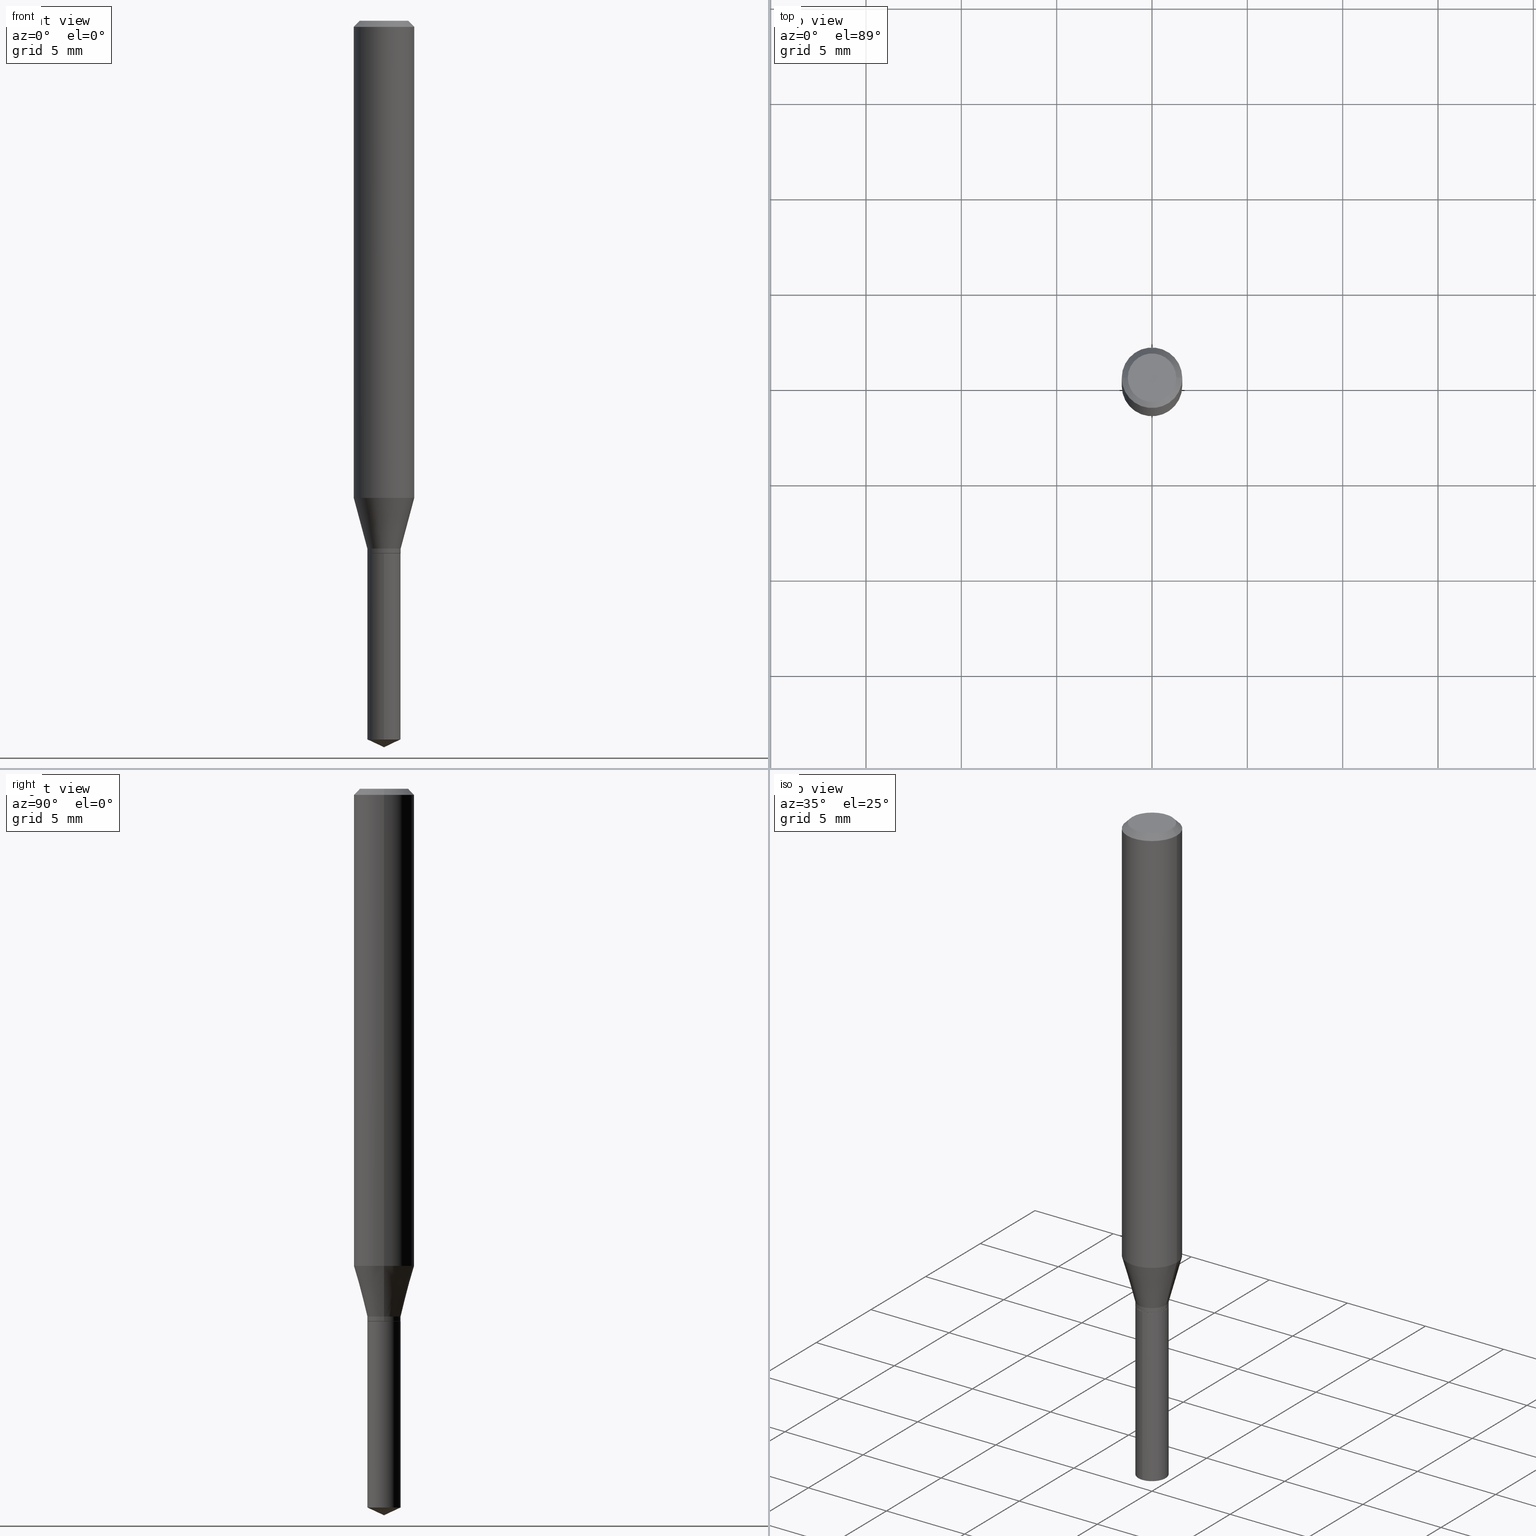
[diagram: canonical four-view strip — front | top / right | iso, engineering-drawing reading convention]
A machine part, canonical four-view strip (front | top / right | iso — engineering-drawing reading convention). The complete STEP part file that produces these views, byte-faithful:
ISO-10303-21;
HEADER;
FILE_DESCRIPTION (( 'STEP AP203' ),
    '1' );
FILE_NAME ('07347.STEP',
    '2024-04-23T20:37:40',
    ( '' ),
    ( '' ),
    'SwSTEP 2.0',
    'SolidWorks 2023',
    '' );
FILE_SCHEMA (( 'CONFIG_CONTROL_DESIGN' ));
ENDSEC;

DATA;
#1 = CARTESIAN_POINT ( 'NONE',  ( 2.690015686803650369E-29, -3.840629472727460101E-15, -1.100000000000000089 ) ) ;
#2 = DIRECTION ( 'NONE',  ( -2.445468806185136597E-29, 3.491481338843145583E-15, 1.000000000000000000 ) ) ;
#3 = ADVANCED_FACE ( 'NONE', ( #449 ), #380, .T. ) ;
#4 = CONICAL_SURFACE ( 'NONE', #285, 84.42940631927510253, 1.134464013796319337 ) ;
#5 = DATE_TIME_ROLE ( 'classification_date' ) ;
#6 = CONICAL_SURFACE ( 'NONE', #43, 0.03394999999999999407, 0.7853981633974184140 ) ;
#7 = CC_DESIGN_PERSON_AND_ORGANIZATION_ASSIGNMENT ( #214, #346, ( #337 ) ) ;
#8 = CARTESIAN_POINT ( 'NONE',  ( 2.447819724693908613E-16, 0.03444999999999483198, -1.483935701176560595 ) ) ;
#9 = PERSON_AND_ORGANIZATION ( #385, #442 ) ;
#10 = COORDINATED_UNIVERSAL_TIME_OFFSET ( 5, 0, .BEHIND. ) ;
#11 = VECTOR ( 'NONE', #46, 39.37007874015748143 ) ;
#12 = APPROVAL_PERSON_ORGANIZATION ( #464, #260, #22 ) ;
#13 = DESIGN_CONTEXT ( 'detailed design', #397, 'design' ) ;
#14 = CARTESIAN_POINT ( 'NONE',  ( 2.690015686803650369E-29, -3.840629472727460101E-15, -1.100000000000000089 ) ) ;
#15 = EDGE_CURVE ( 'NONE', #217, #28, #36, .T. ) ;
#16 = EDGE_LOOP ( 'NONE', ( #390, #399 ) ) ;
#17 = ORIENTED_EDGE ( 'NONE', *, *, #297, .F. ) ;
#18 = CARTESIAN_POINT ( 'NONE',  ( 3.056836007731440977E-31, -4.364351673553961068E-17, -0.01250000000000008223 ) ) ;
#19 = CIRCLE ( 'NONE', #209, 0.03445000000000000145 ) ;
#20 = EDGE_LOOP ( 'NONE', ( #430, #183, #267, #487 ) ) ;
#21 = CARTESIAN_POINT ( 'NONE',  ( 0.03445000000000000145, -4.045230279183668208E-15, -1.089700000000000113 ) ) ;
#22 = APPROVAL_ROLE ( '' ) ;
#23 = CARTESIAN_POINT ( 'NONE',  ( 2.690015686803650369E-29, -3.840629472727460101E-15, -1.100000000000000089 ) ) ;
#24 = ORIENTED_EDGE ( 'NONE', *, *, #249, .F. ) ;
#25 = EDGE_CURVE ( 'NONE', #289, #326, #198, .T. ) ;
#26 = FACE_OUTER_BOUND ( 'NONE', #167, .T. ) ;
#27 = COORDINATED_UNIVERSAL_TIME_OFFSET ( 5, 0, .BEHIND. ) ;
#28 = VERTEX_POINT ( 'NONE', #96 ) ;
#29 = LINE ( 'NONE', #443, #237 ) ;
#30 = CYLINDRICAL_SURFACE ( 'NONE', #328, 0.03445000000000000145 ) ;
#31 = VECTOR ( 'NONE', #48, 39.37007874015748143 ) ;
#32 = CC_DESIGN_PERSON_AND_ORGANIZATION_ASSIGNMENT ( #9, #341, ( #459 ) ) ;
#33 = DIRECTION ( 'NONE',  ( -2.445468806185136597E-29, 3.491481338843145583E-15, 1.000000000000000000 ) ) ;
#34 = CARTESIAN_POINT ( 'NONE',  ( 2.664827358099943591E-29, -3.804667214937376339E-15, -1.089700000000000113 ) ) ;
#35 = CARTESIAN_POINT ( 'NONE',  ( 0.000000000000000000, 0.000000000000000000, 0.000000000000000000 ) ) ;
#36 = LINE ( 'NONE', #309, #280 ) ;
#37 = EDGE_LOOP ( 'NONE', ( #24, #338, #440, #195 ) ) ;
#38 = DIRECTION ( 'NONE',  ( 2.445468806185136597E-29, -3.491481338843145583E-15, -1.000000000000000000 ) ) ;
#39 = PERSON_AND_ORGANIZATION ( #385, #442 ) ;
#40 = DIRECTION ( 'NONE',  ( 1.000000000000000000, -6.982962677686265922E-15, 4.875957971899673662E-29 ) ) ;
#41 = ORIENTED_EDGE ( 'NONE', *, *, #371, .T. ) ;
#42 = VECTOR ( 'NONE', #153, 39.37007874015748143 ) ;
#43 = AXIS2_PLACEMENT_3D ( 'NONE', #70, #225, #359 ) ;
#44 = DIRECTION ( 'NONE',  ( -2.445399690415121530E-29, 3.491580316559632610E-15, 1.000000000000000000 ) ) ;
#45 = PRODUCT_DEFINITION_SHAPE ( 'NONE', 'NONE',  #194 ) ;
#46 = DIRECTION ( 'NONE',  ( -2.445468806185136877E-29, 3.491481338843145188E-15, 1.000000000000000000 ) ) ;
#47 = CALENDAR_DATE ( 2024, 23, 4 ) ;
#48 = DIRECTION ( 'NONE',  ( -2.445399690415121810E-29, 3.491580316559632610E-15, 1.000000000000000000 ) ) ;
#49 = LINE ( 'NONE', #199, #126 ) ;
#50 = VECTOR ( 'NONE', #119, 39.37007874015748143 ) ;
#51 = DIRECTION ( 'NONE',  ( 2.445468806185136597E-29, -3.491481338843145583E-15, -1.000000000000000000 ) ) ;
#52 = EDGE_CURVE ( 'NONE', #363, #372, #356, .T. ) ;
#53 =( NAMED_UNIT ( * ) SI_UNIT ( $, .STERADIAN. ) SOLID_ANGLE_UNIT ( ) );
#54 = DIRECTION ( 'NONE',  ( 2.438088387897960049E-29, -3.491481338843145188E-15, -1.000000000000000000 ) ) ;
#55 = CARTESIAN_POINT ( 'NONE',  ( -2.405630642462556803E-16, -0.03445000000000519175, -1.483935701176560595 ) ) ;
#56 = LINE ( 'NONE', #89, #50 ) ;
#57 = CC_DESIGN_APPROVAL ( #260, ( #194 ) ) ;
#58 = ORIENTED_EDGE ( 'NONE', *, *, #322, .T. ) ;
#59 = PLANE ( 'NONE',  #458 ) ;
#60 = DIRECTION ( 'NONE',  ( 1.000000000000000000, -6.982962677686265922E-15, 0.000000000000000000 ) ) ;
#61 = EDGE_CURVE ( 'NONE', #211, #326, #401, .T. ) ;
#62 = DIRECTION ( 'NONE',  ( -1.000000000000000000, 6.982962677686265922E-15, -4.876176775795935793E-29 ) ) ;
#63 = ADVANCED_FACE ( 'NONE', ( #145 ), #295, .T. ) ;
#64 = ORIENTED_EDGE ( 'NONE', *, *, #113, .T. ) ;
#65 = ORIENTED_EDGE ( 'NONE', *, *, #445, .F. ) ;
#66 = CARTESIAN_POINT ( 'NONE',  ( 0.03445000000000000145, -4.045230279183668208E-15, -1.089700000000000113 ) ) ;
#67 = DIRECTION ( 'NONE',  ( -6.982962677686265922E-15, -1.000000000000000000, 3.964946289788480896E-15 ) ) ;
#68 = ORIENTED_EDGE ( 'NONE', *, *, #25, .T. ) ;
#69 = EDGE_CURVE ( 'NONE', #75, #372, #100, .T. ) ;
#70 = CARTESIAN_POINT ( 'NONE',  ( 2.690015686803650369E-29, -3.840629472727460101E-15, -1.100000000000000089 ) ) ;
#71 = AXIS2_PLACEMENT_3D ( 'NONE', #283, #468, #383 ) ;
#72 = CIRCLE ( 'NONE', #375, 0.04999999999999999584 ) ;
#73 = ORIENTED_EDGE ( 'NONE', *, *, #101, .F. ) ;
#74 = DIRECTION ( 'NONE',  ( -2.445399690415121530E-29, 3.491580316559632610E-15, 1.000000000000000000 ) ) ;
#75 = VERTEX_POINT ( 'NONE', #66 ) ;
#76 = MANIFOLD_SOLID_BREP ( 'Body-Move/Copy2[2]', #87 ) ;
#77 = ORIENTED_EDGE ( 'NONE', *, *, #61, .F. ) ;
#78 = DIRECTION ( 'NONE',  ( -2.445468806185136597E-29, 3.491481338843145583E-15, 1.000000000000000000 ) ) ;
#79 = PLANE ( 'NONE',  #95 ) ;
#80 = ORIENTED_EDGE ( 'NONE', *, *, #113, .F. ) ;
#81 = EDGE_CURVE ( 'NONE', #372, #363, #314, .T. ) ;
#82 = PRODUCT_DEFINITION_FORMATION_WITH_SPECIFIED_SOURCE ( 'ANY', '', #337, .NOT_KNOWN. ) ;
#83 = FACE_OUTER_BOUND ( 'NONE', #20, .T. ) ;
#84 = EDGE_CURVE ( 'NONE', #274, #479, #451, .T. ) ;
#85 = DIRECTION ( 'NONE',  ( 1.000000000000000000, -6.982962677686265922E-15, 4.876176775795935793E-29 ) ) ;
#86 = DIRECTION ( 'NONE',  ( -2.445468806185136597E-29, 3.491481338843145583E-15, 1.000000000000000000 ) ) ;
#87 = CLOSED_SHELL ( 'NONE', ( #377, #460, #407, #488, #426, #350, #3, #179, #121, #221, #453, #354 ) ) ;
#88 = DIRECTION ( 'NONE',  ( 1.000000000000000000, -6.982962677686265922E-15, 0.000000000000000000 ) ) ;
#89 = CARTESIAN_POINT ( 'NONE',  ( 0.06250000000000005551, -4.364351673553921131E-16, 3.047610484872463023E-30 ) ) ;
#90 = DIRECTION ( 'NONE',  ( 2.445399690415121250E-29, -3.491580316559632610E-15, -1.000000000000000000 ) ) ;
#91 = ORIENTED_EDGE ( 'NONE', *, *, #155, .T. ) ;
#92 = ADVANCED_FACE ( 'NONE', ( #83 ), #412, .T. ) ;
#93 = CARTESIAN_POINT ( 'NONE',  ( 0.04999999999999999584, -4.077247707424184212E-16, -1.592040838888913461E-18 ) ) ;
#94 = VECTOR ( 'NONE', #197, 39.37007874015748854 ) ;
#95 = AXIS2_PLACEMENT_3D ( 'NONE', #1, #369, #85 ) ;
#96 = CARTESIAN_POINT ( 'NONE',  ( -0.06250000000000000000, -1.297314995839260696E-15, -0.01250000000000008223 ) ) ;
#97 = DIRECTION ( 'NONE',  ( -2.445468806185136877E-29, 3.491481338843145188E-15, 1.000000000000000000 ) ) ;
#98 = ORIENTED_EDGE ( 'NONE', *, *, #469, .T. ) ;
#99 = DIRECTION ( 'NONE',  ( -6.982962677686265922E-15, -1.000000000000000000, 3.964946289788480896E-15 ) ) ;
#100 = LINE ( 'NONE', #21, #181 ) ;
#101 = EDGE_CURVE ( 'NONE', #274, #75, #308, .T. ) ;
#102 = CARTESIAN_POINT ( 'NONE',  ( -9.260740279983036507E-28, 1.322265303911854087E-13, 37.87007874015748143 ) ) ;
#103 = DIRECTION ( 'NONE',  ( 1.000000000000000000, -6.982962677686267499E-15, 4.876176775795935793E-29 ) ) ;
#104 = ORIENTED_EDGE ( 'NONE', *, *, #330, .F. ) ;
#105 = DIRECTION ( 'NONE',  ( 0.2588190451025212391, 1.565188264969622362E-15, 0.9659258262890679791 ) ) ;
#106 = APPROVAL_STATUS ( 'not_yet_approved' ) ;
#107 = CIRCLE ( 'NONE', #71, 0.03445000000000000145 ) ;
#108 = ADVANCED_BREP_SHAPE_REPRESENTATION ( '07347', ( #240, #76, #232 ), #431 ) ;
#109 = AXIS2_PLACEMENT_3D ( 'NONE', #118, #268, #40 ) ;
#110 = ORIENTED_EDGE ( 'NONE', *, *, #273, .T. ) ;
#111 = SECURITY_CLASSIFICATION_LEVEL ( 'unclassified' ) ;
#112 = EDGE_LOOP ( 'NONE', ( #185, #91, #411, #428 ) ) ;
#113 = EDGE_CURVE ( 'NONE', #75, #415, #19, .T. ) ;
#114 = CARTESIAN_POINT ( 'NONE',  ( -0.03445000000000000145, -3.576993501028352698E-15, -1.089700000000000113 ) ) ;
#115 = CARTESIAN_POINT ( 'NONE',  ( 2.664827358099943591E-29, -3.804667214937376339E-15, -1.089700000000000113 ) ) ;
#116 = AXIS2_PLACEMENT_3D ( 'NONE', #408, #366, #222 ) ;
#117 = ORIENTED_EDGE ( 'NONE', *, *, #416, .F. ) ;
#118 = CARTESIAN_POINT ( 'NONE',  ( 3.893286209682126177E-47, -5.558580879666067980E-33, -1.592040838891559689E-18 ) ) ;
#119 = DIRECTION ( 'NONE',  ( -2.445468806185136877E-29, 3.491481338843145188E-15, 1.000000000000000000 ) ) ;
#120 = DIRECTION ( 'NONE',  ( -2.445468806185136597E-29, 3.491481338843145583E-15, 1.000000000000000000 ) ) ;
#121 = ADVANCED_FACE ( 'NONE', ( #306 ), #161, .T. ) ;
#122 = LINE ( 'NONE', #339, #94 ) ;
#123 = DATE_AND_TIME ( #409, #143 ) ;
#124 = ORIENTED_EDGE ( 'NONE', *, *, #386, .T. ) ;
#125 = AXIS2_PLACEMENT_3D ( 'NONE', #284, #329, #182 ) ;
#126 = VECTOR ( 'NONE', #234, 39.37007874015748143 ) ;
#127 = CARTESIAN_POINT ( 'NONE',  ( -0.06250000000000005551, 4.440892098500630106E-16, -3.074334431409318916E-30 ) ) ;
#128 = EDGE_CURVE ( 'NONE', #479, #274, #490, .T. ) ;
#129 = DIRECTION ( 'NONE',  ( 1.000000000000000000, -6.982962677686265922E-15, 0.000000000000000000 ) ) ;
#130 = FACE_OUTER_BOUND ( 'NONE', #16, .T. ) ;
#131 = CALENDAR_DATE ( 2024, 23, 4 ) ;
#132 = DIRECTION ( 'NONE',  ( -6.982962677686268288E-15, -1.000000000000000000, 3.520397390770421921E-15 ) ) ;
#133 = APPROVAL_STATUS ( 'not_yet_approved' ) ;
#134 = CARTESIAN_POINT ( 'NONE',  ( 1.946643104841063088E-47, -2.779290439833033990E-33, -7.960204194457798443E-19 ) ) ;
#135 = VECTOR ( 'NONE', #97, 39.37007874015748143 ) ;
#136 = CONICAL_SURFACE ( 'NONE', #482, 0.03445000000000000145, 0.2617993877991499629 ) ;
#137 = ADVANCED_FACE ( 'NONE', ( #207 ), #4, .T. ) ;
#138 = DIRECTION ( 'NONE',  ( -6.982962677686265922E-15, -1.000000000000000000, 3.964946289788480896E-15 ) ) ;
#139 = CARTESIAN_POINT ( 'NONE',  ( -2.405630642462649987E-16, -0.03445000000000384560, -1.099999999999999867 ) ) ;
#140 = ORIENTED_EDGE ( 'NONE', *, *, #478, .T. ) ;
#141 = CIRCLE ( 'NONE', #189, 0.03445000000000000145 ) ;
#142 =( NAMED_UNIT ( * ) PLANE_ANGLE_UNIT ( ) SI_UNIT ( $, .RADIAN. ) );
#143 = LOCAL_TIME ( 16, 37, 40.00000000000000000, #233 ) ;
#144 = EDGE_CURVE ( 'NONE', #402, #166, #467, .T. ) ;
#145 = FACE_OUTER_BOUND ( 'NONE', #294, .T. ) ;
#146 = ORIENTED_EDGE ( 'NONE', *, *, #386, .F. ) ;
#147 = SHAPE_DEFINITION_REPRESENTATION ( #45, #108 ) ;
#148 = DATE_TIME_ROLE ( 'creation_date' ) ;
#149 = AXIS2_PLACEMENT_3D ( 'NONE', #245, #239, #421 ) ;
#150 = AXIS2_PLACEMENT_3D ( 'NONE', #259, #33, #299 ) ;
#151 = ORIENTED_EDGE ( 'NONE', *, *, #163, .T. ) ;
#152 = ORIENTED_EDGE ( 'NONE', *, *, #330, .T. ) ;
#153 = DIRECTION ( 'NONE',  ( -2.445399690415121810E-29, 3.491580316559632610E-15, 1.000000000000000000 ) ) ;
#154 = CARTESIAN_POINT ( 'NONE',  ( -2.405630642462649987E-16, -0.03445000000000384560, -1.099999999999999867 ) ) ;
#155 = EDGE_CURVE ( 'NONE', #187, #320, #382, .T. ) ;
#156 = VERTEX_POINT ( 'NONE', #55 ) ;
#157 = ORIENTED_EDGE ( 'NONE', *, *, #316, .F. ) ;
#158 = DIRECTION ( 'NONE',  ( 0.7071067811865263675, -2.468850131082035391E-15, 0.7071067811865686670 ) ) ;
#159 = DIRECTION ( 'NONE',  ( -6.982962677686265922E-15, -1.000000000000000000, 0.000000000000000000 ) ) ;
#160 = DIRECTION ( 'NONE',  ( 1.000000000000000000, -6.982962677686265922E-15, 0.000000000000000000 ) ) ;
#161 = CONICAL_SURFACE ( 'NONE', #215, 0.06250000000000000000, 0.7853981633974452814 ) ;
#162 = DIRECTION ( 'NONE',  ( 1.000000000000000000, -6.982962677686267499E-15, 4.876176775795935793E-29 ) ) ;
#163 = EDGE_CURVE ( 'NONE', #326, #289, #481, .T. ) ;
#164 = DIRECTION ( 'NONE',  ( 1.000000000000000000, -6.982962677686265922E-15, 0.000000000000000000 ) ) ;
#165 = DIRECTION ( 'NONE',  ( 1.000000000000000000, -6.982962677686266711E-15, 0.000000000000000000 ) ) ;
#166 = VERTEX_POINT ( 'NONE', #323 ) ;
#167 = EDGE_LOOP ( 'NONE', ( #65, #298, #152, #227 ) ) ;
#168 = DIRECTION ( 'NONE',  ( 1.000000000000000000, -6.982962677686264344E-15, 0.000000000000000000 ) ) ;
#169 = EDGE_CURVE ( 'NONE', #370, #156, #29, .T. ) ;
#170 = AXIS2_PLACEMENT_3D ( 'NONE', #102, #174, #315 ) ;
#171 = LOCAL_TIME ( 16, 37, 40.00000000000000000, #244 ) ;
#172 = APPROVAL_STATUS ( 'not_yet_approved' ) ;
#173 = CARTESIAN_POINT ( 'NONE',  ( 2.664827358099943591E-29, -3.804667214937376339E-15, -1.089700000000000113 ) ) ;
#174 = DIRECTION ( 'NONE',  ( -2.445399690415121530E-29, 3.491580316559632610E-15, 1.000000000000000000 ) ) ;
#175 = DIRECTION ( 'NONE',  ( -2.445399690415121530E-29, 3.491580316559632610E-15, 1.000000000000000000 ) ) ;
#176 = EDGE_LOOP ( 'NONE', ( #334, #140 ) ) ;
#177 = DIRECTION ( 'NONE',  ( 1.000000000000000000, -6.982962677686266711E-15, 0.000000000000000000 ) ) ;
#178 =( LENGTH_UNIT ( ) NAMED_UNIT ( * ) SI_UNIT ( $, .METRE. ) );
#179 = ADVANCED_FACE ( 'NONE', ( #26 ), #420, .T. ) ;
#180 = ORIENTED_EDGE ( 'NONE', *, *, #466, .F. ) ;
#181 = VECTOR ( 'NONE', #105, 39.37007874015748854 ) ;
#182 = DIRECTION ( 'NONE',  ( 1.000000000000000000, -6.982962677686264344E-15, 0.000000000000000000 ) ) ;
#183 = ORIENTED_EDGE ( 'NONE', *, *, #61, .T. ) ;
#184 = CALENDAR_DATE ( 2024, 23, 4 ) ;
#185 = ORIENTED_EDGE ( 'NONE', *, *, #478, .F. ) ;
#186 = CARTESIAN_POINT ( 'NONE',  ( 2.664827358099943591E-29, -3.804667214937376339E-15, -1.089700000000000113 ) ) ;
#187 = VERTEX_POINT ( 'NONE', #93 ) ;
#188 = EDGE_CURVE ( 'NONE', #415, #75, #141, .T. ) ;
#189 = AXIS2_PLACEMENT_3D ( 'NONE', #173, #86, #129 ) ;
#190 = APPROVAL_PERSON_ORGANIZATION ( #439, #241, #218 ) ;
#191 = CARTESIAN_POINT ( 'NONE',  ( -0.06250000000000012490, -2.995075684793045236E-15, -0.9850159748476928767 ) ) ;
#192 = CARTESIAN_POINT ( 'NONE',  ( 0.06250000000000012490, -3.875600061998501888E-15, -0.9850159748476928767 ) ) ;
#193 = CARTESIAN_POINT ( 'NONE',  ( 2.690015686803650369E-29, -3.840629472727460101E-15, -1.100000000000000089 ) ) ;
#194 = PRODUCT_DEFINITION ( 'UNKNOWN', '', #82, #13 ) ;
#195 = ORIENTED_EDGE ( 'NONE', *, *, #52, .F. ) ;
#196 = CARTESIAN_POINT ( 'NONE',  ( 2.690015686803650369E-29, -3.840629472727460101E-15, -1.100000000000000089 ) ) ;
#197 = DIRECTION ( 'NONE',  ( -0.2588190451025212391, 5.211531920934549464E-15, 0.9659258262890679791 ) ) ;
#198 = CIRCLE ( 'NONE', #327, 0.03445000000000000145 ) ;
#199 = CARTESIAN_POINT ( 'NONE',  ( 3.668252923656895710E-29, -5.237152723863177100E-15, -1.500000000000000222 ) ) ;
#200 = AXIS2_PLACEMENT_3D ( 'NONE', #236, #51, #208 ) ;
#201 = APPROVAL_ROLE ( '' ) ;
#202 = DIRECTION ( 'NONE',  ( -2.445468806185136597E-29, 3.491481338843145583E-15, 1.000000000000000000 ) ) ;
#203 = DATE_AND_TIME ( #47, #171 ) ;
#204 = FACE_OUTER_BOUND ( 'NONE', #489, .T. ) ;
#205 = AXIS2_PLACEMENT_3D ( 'NONE', #438, #444, #67 ) ;
#206 = CC_DESIGN_SECURITY_CLASSIFICATION ( #459, ( #82 ) ) ;
#207 = FACE_OUTER_BOUND ( 'NONE', #457, .T. ) ;
#208 = DIRECTION ( 'NONE',  ( -1.000000000000000000, 6.982962677686266711E-15, 0.000000000000000000 ) ) ;
#209 = AXIS2_PLACEMENT_3D ( 'NONE', #34, #367, #160 ) ;
#210 = AXIS2_PLACEMENT_3D ( 'NONE', #196, #304, #165 ) ;
#211 = VERTEX_POINT ( 'NONE', #8 ) ;
#212 = CC_DESIGN_PERSON_AND_ORGANIZATION_ASSIGNMENT ( #357, #461, ( #194 ) ) ;
#213 = ORIENTED_EDGE ( 'NONE', *, *, #403, .T. ) ;
#214 = PERSON_AND_ORGANIZATION ( #385, #442 ) ;
#215 = AXIS2_PLACEMENT_3D ( 'NONE', #333, #38, #301 ) ;
#216 = DATE_AND_TIME ( #353, #365 ) ;
#217 = VERTEX_POINT ( 'NONE', #276 ) ;
#218 = APPROVAL_ROLE ( '' ) ;
#219 = APPROVAL_DATE_TIME ( #123, #342 ) ;
#220 = ORIENTED_EDGE ( 'NONE', *, *, #445, .T. ) ;
#221 = ADVANCED_FACE ( 'NONE', ( #247 ), #59, .F. ) ;
#222 = DIRECTION ( 'NONE',  ( 1.000000000000000000, -6.982962677686266711E-15, 0.000000000000000000 ) ) ;
#223 = CONICAL_SURFACE ( 'NONE', #200, 0.06250000000000000000, 0.7853981633974452814 ) ;
#224 = EDGE_LOOP ( 'NONE', ( #228, #447, #146 ) ) ;
#225 = DIRECTION ( 'NONE',  ( -2.445468806185136597E-29, 3.491481338843145583E-15, 1.000000000000000000 ) ) ;
#226 = PRODUCT_RELATED_PRODUCT_CATEGORY ( 'detail', '', ( #337 ) ) ;
#227 = ORIENTED_EDGE ( 'NONE', *, *, #371, .F. ) ;
#228 = ORIENTED_EDGE ( 'NONE', *, *, #403, .F. ) ;
#229 = EDGE_LOOP ( 'NONE', ( #64, #246, #470, #331 ) ) ;
#230 = LINE ( 'NONE', #127, #473 ) ;
#231 = ORIENTED_EDGE ( 'NONE', *, *, #101, .T. ) ;
#232 = AXIS2_PLACEMENT_3D ( 'NONE', #242, #471, #395 ) ;
#233 = COORDINATED_UNIVERSAL_TIME_OFFSET ( 5, 0, .BEHIND. ) ;
#234 = DIRECTION ( 'NONE',  ( 6.439704144417040608E-15, 0.9063077870366536004, 0.4226182617406916142 ) ) ;
#235 = EDGE_CURVE ( 'NONE', #156, #289, #394, .T. ) ;
#236 = CARTESIAN_POINT ( 'NONE',  ( 3.056836007731440977E-31, -4.364351673553961068E-17, -0.01250000000000008223 ) ) ;
#237 = VECTOR ( 'NONE', #437, 39.37007874015748143 ) ;
#238 = CC_DESIGN_APPROVAL ( #241, ( #82 ) ) ;
#239 = DIRECTION ( 'NONE',  ( -2.445468806185136597E-29, 3.491481338843145583E-15, 1.000000000000000000 ) ) ;
#240 = MANIFOLD_SOLID_BREP ( 'Body-Move/Copy2[1]', #429 ) ;
#241 = APPROVAL ( #106, 'UNSPECIFIED' ) ;
#242 = CARTESIAN_POINT ( 'NONE',  ( 0.000000000000000000, 0.000000000000000000, 0.000000000000000000 ) ) ;
#243 = CARTESIAN_POINT ( 'NONE',  ( 0.000000000000000000, 0.000000000000000000, 0.000000000000000000 ) ) ;
#244 = COORDINATED_UNIVERSAL_TIME_OFFSET ( 5, 0, .BEHIND. ) ;
#245 = CARTESIAN_POINT ( 'NONE',  ( 2.690015686803650369E-29, -3.840629472727460101E-15, -1.100000000000000089 ) ) ;
#246 = ORIENTED_EDGE ( 'NONE', *, *, #249, .T. ) ;
#247 = FACE_OUTER_BOUND ( 'NONE', #176, .T. ) ;
#248 = AXIS2_PLACEMENT_3D ( 'NONE', #455, #120, #60 ) ;
#249 = EDGE_CURVE ( 'NONE', #415, #363, #122, .T. ) ;
#250 = EDGE_LOOP ( 'NONE', ( #255, #351, #231, #358 ) ) ;
#251 = AXIS2_PLACEMENT_3D ( 'NONE', #35, #436, #103 ) ;
#252 = APPLICATION_PROTOCOL_DEFINITION ( 'international standard', 'config_control_design', 1994, #373 ) ;
#253 = CYLINDRICAL_SURFACE ( 'NONE', #251, 0.03445000000000000145 ) ;
#254 = ORIENTED_EDGE ( 'NONE', *, *, #155, .F. ) ;
#255 = ORIENTED_EDGE ( 'NONE', *, *, #322, .F. ) ;
#256 = CARTESIAN_POINT ( 'NONE',  ( 2.408825840084076168E-29, -3.439164894643109430E-15, -0.9850159748476928767 ) ) ;
#257 = LINE ( 'NONE', #486, #475 ) ;
#258 = EDGE_LOOP ( 'NONE', ( #254, #180, #474, #41 ) ) ;
#259 = CARTESIAN_POINT ( 'NONE',  ( 3.056836007731440977E-31, -4.364351673553961068E-17, -0.01250000000000008223 ) ) ;
#260 = APPROVAL ( #133, 'UNSPECIFIED' ) ;
#261 = AXIS2_PLACEMENT_3D ( 'NONE', #18, #318, #177 ) ;
#262 = DIRECTION ( 'NONE',  ( -2.445399690415121530E-29, 3.491580316559632610E-15, 1.000000000000000000 ) ) ;
#263 = LOCAL_TIME ( 16, 37, 40.00000000000000000, #27 ) ;
#264 = FACE_OUTER_BOUND ( 'NONE', #355, .T. ) ;
#265 = CONICAL_SURFACE ( 'NONE', #116, 0.03394999999999999407, 0.7853981633974184140 ) ;
#266 = DIRECTION ( 'NONE',  ( -2.445468806185136597E-29, 3.491481338843145583E-15, 1.000000000000000000 ) ) ;
#267 = ORIENTED_EDGE ( 'NONE', *, *, #25, .F. ) ;
#268 = DIRECTION ( 'NONE',  ( -2.445468806185136597E-29, 3.491481338843145583E-15, 1.000000000000000000 ) ) ;
#269 = UNCERTAINTY_MEASURE_WITH_UNIT (LENGTH_MEASURE( 1.000000000000000082E-05 ), #281, 'distance_accuracy_value', 'NONE');
#270 = LINE ( 'NONE', #410, #364 ) ;
#271 = DIRECTION ( 'NONE',  ( 1.000000000000000000, -6.982962677686265922E-15, 4.875957971899673662E-29 ) ) ;
#272 = DIRECTION ( 'NONE',  ( -2.445468806185136597E-29, 3.491481338843145583E-15, 1.000000000000000000 ) ) ;
#273 = EDGE_CURVE ( 'NONE', #166, #479, #270, .T. ) ;
#274 = VERTEX_POINT ( 'NONE', #378 ) ;
#275 = DIRECTION ( 'NONE',  ( -2.445468806185136877E-29, 3.491481338843145188E-15, 1.000000000000000000 ) ) ;
#276 = CARTESIAN_POINT ( 'NONE',  ( -0.04999999999999999584, 3.709698922520826725E-16, -1.592040838894077649E-18 ) ) ;
#277 = DIRECTION ( 'NONE',  ( -0.7071067811865453523, 2.468850131082234184E-15, -0.7071067811865496822 ) ) ;
#278 = DATE_AND_TIME ( #131, #263 ) ;
#279 = ADVANCED_FACE ( 'NONE', ( #204 ), #313, .F. ) ;
#280 = VECTOR ( 'NONE', #277, 39.37007874015748143 ) ;
#281 =( CONVERSION_BASED_UNIT ( 'INCH', #319 ) LENGTH_UNIT ( ) NAMED_UNIT ( #360 ) );
#282 = CARTESIAN_POINT ( 'NONE',  ( 0.06250000000000000000, -4.800786840909312308E-16, -0.01250000000000008223 ) ) ;
#283 = CARTESIAN_POINT ( 'NONE',  ( 3.628891931600123606E-29, -5.181171809780059473E-15, -1.483935701176560595 ) ) ;
#284 = CARTESIAN_POINT ( 'NONE',  ( 2.408825840084076168E-29, -3.439164894643109430E-15, -0.9850159748476928767 ) ) ;
#285 = AXIS2_PLACEMENT_3D ( 'NONE', #311, #463, #132 ) ;
#286 = AXIS2_PLACEMENT_3D ( 'NONE', #456, #272, #484 ) ;
#287 = PERSON_AND_ORGANIZATION ( #385, #442 ) ;
#288 = ORIENTED_EDGE ( 'NONE', *, *, #416, .T. ) ;
#289 = VERTEX_POINT ( 'NONE', #139 ) ;
#290 = ADVANCED_FACE ( 'NONE', ( #435 ), #321, .T. ) ;
#291 = COORDINATED_UNIVERSAL_TIME_OFFSET ( 5, 0, .BEHIND. ) ;
#292 = CIRCLE ( 'NONE', #210, 0.03394999999999999407 ) ;
#293 = PERSON_AND_ORGANIZATION_ROLE ( 'design_supplier' ) ;
#294 = EDGE_LOOP ( 'NONE', ( #77, #124, #352, #362 ) ) ;
#295 = CYLINDRICAL_SURFACE ( 'NONE', #205, 0.03445000000000000145 ) ;
#296 = EDGE_LOOP ( 'NONE', ( #434, #98, #288, #391 ) ) ;
#297 = EDGE_CURVE ( 'NONE', #156, #211, #107, .T. ) ;
#298 = ORIENTED_EDGE ( 'NONE', *, *, #52, .T. ) ;
#299 = DIRECTION ( 'NONE',  ( 1.000000000000000000, -6.982962677686266711E-15, 0.000000000000000000 ) ) ;
#300 = AXIS2_PLACEMENT_3D ( 'NONE', #243, #465, #307 ) ;
#301 = DIRECTION ( 'NONE',  ( -1.000000000000000000, 6.982962677686266711E-15, 0.000000000000000000 ) ) ;
#302 = FACE_OUTER_BOUND ( 'NONE', #450, .T. ) ;
#303 = CC_DESIGN_DATE_AND_TIME_ASSIGNMENT ( #324, #148, ( #194 ) ) ;
#304 = DIRECTION ( 'NONE',  ( -2.445468806185136597E-29, 3.491481338843145583E-15, 1.000000000000000000 ) ) ;
#305 = CYLINDRICAL_SURFACE ( 'NONE', #286, 0.06250000000000005551 ) ;
#306 = FACE_OUTER_BOUND ( 'NONE', #258, .T. ) ;
#307 = DIRECTION ( 'NONE',  ( 1.000000000000000000, -6.982962677686267499E-15, 4.876176775795936353E-29 ) ) ;
#308 = LINE ( 'NONE', #418, #11 ) ;
#309 = CARTESIAN_POINT ( 'NONE',  ( -0.06250000000000000000, 3.927916506198521080E-16, -0.01250000000000008223 ) ) ;
#310 = CC_DESIGN_PERSON_AND_ORGANIZATION_ASSIGNMENT ( #39, #293, ( #82 ) ) ;
#311 = CARTESIAN_POINT ( 'NONE',  ( -9.260740279983036507E-28, 1.322265303911854087E-13, 37.87007874015748143 ) ) ;
#312 = MECHANICAL_CONTEXT ( 'NONE', #373, 'mechanical' ) ;
#313 = PLANE ( 'NONE',  #335 ) ;
#314 = CIRCLE ( 'NONE', #389, 0.06250000000000012490 ) ;
#315 = DIRECTION ( 'NONE',  ( -6.982962677686268288E-15, -1.000000000000000000, 3.520397390770421921E-15 ) ) ;
#316 = EDGE_CURVE ( 'NONE', #320, #28, #404, .T. ) ;
#317 = ORIENTED_EDGE ( 'NONE', *, *, #84, .T. ) ;
#318 = DIRECTION ( 'NONE',  ( -2.445468806185136597E-29, 3.491481338843145583E-15, 1.000000000000000000 ) ) ;
#319 = LENGTH_MEASURE_WITH_UNIT ( LENGTH_MEASURE( 0.02539999999999999897 ), #178 );
#320 = VERTEX_POINT ( 'NONE', #282 ) ;
#321 = CONICAL_SURFACE ( 'NONE', #170, 84.42940631927510253, 1.134464013796319337 ) ;
#322 = EDGE_CURVE ( 'NONE', #479, #415, #345, .T. ) ;
#323 = CARTESIAN_POINT ( 'NONE',  ( -0.03394999999999999407, -3.596750986762795422E-15, -1.100000000000000089 ) ) ;
#324 = DATE_AND_TIME ( #184, #452 ) ;
#325 = DIRECTION ( 'NONE',  ( -2.445468806185136597E-29, 3.491481338843145583E-15, 1.000000000000000000 ) ) ;
#326 = VERTEX_POINT ( 'NONE', #427 ) ;
#327 = AXIS2_PLACEMENT_3D ( 'NONE', #23, #262, #138 ) ;
#328 = AXIS2_PLACEMENT_3D ( 'NONE', #446, #325, #162 ) ;
#329 = DIRECTION ( 'NONE',  ( -2.445468806185136597E-29, 3.491481338843145583E-15, 1.000000000000000000 ) ) ;
#330 = EDGE_CURVE ( 'NONE', #372, #320, #56, .T. ) ;
#331 = ORIENTED_EDGE ( 'NONE', *, *, #69, .F. ) ;
#332 = CARTESIAN_POINT ( 'NONE',  ( 3.628891931600123606E-29, -5.181171809780059473E-15, -1.483935701176560595 ) ) ;
#333 = CARTESIAN_POINT ( 'NONE',  ( 3.056836007731440977E-31, -4.364351673553961068E-17, -0.01250000000000008223 ) ) ;
#334 = ORIENTED_EDGE ( 'NONE', *, *, #466, .T. ) ;
#335 = AXIS2_PLACEMENT_3D ( 'NONE', #388, #90, #347 ) ;
#336 = AXIS2_PLACEMENT_3D ( 'NONE', #332, #74, #159 ) ;
#337 = PRODUCT ( '07347', '07347', '', ( #312 ) ) ;
#338 = ORIENTED_EDGE ( 'NONE', *, *, #188, .T. ) ;
#339 = CARTESIAN_POINT ( 'NONE',  ( -0.03445000000000000145, -3.559885242468021174E-15, -1.089700000000000113 ) ) ;
#340 = ORIENTED_EDGE ( 'NONE', *, *, #169, .F. ) ;
#341 = PERSON_AND_ORGANIZATION_ROLE ( 'classification_officer' ) ;
#342 = APPROVAL ( #172, 'UNSPECIFIED' ) ;
#343 = APPROVAL_PERSON_ORGANIZATION ( #384, #342, #201 ) ;
#344 = CARTESIAN_POINT ( 'NONE',  ( -0.03445000000000000145, -3.576993501028352698E-15, -1.099499999999999922 ) ) ;
#345 = LINE ( 'NONE', #425, #135 ) ;
#346 = PERSON_AND_ORGANIZATION_ROLE ( 'design_owner' ) ;
#347 = DIRECTION ( 'NONE',  ( 6.982962677686265922E-15, 1.000000000000000000, -3.491580316559632610E-15 ) ) ;
#348 = AXIS2_PLACEMENT_3D ( 'NONE', #193, #44, #368 ) ;
#349 = CIRCLE ( 'NONE', #109, 0.04999999999999999584 ) ;
#350 = ADVANCED_FACE ( 'NONE', ( #400 ), #30, .T. ) ;
#351 = ORIENTED_EDGE ( 'NONE', *, *, #128, .T. ) ;
#352 = ORIENTED_EDGE ( 'NONE', *, *, #235, .T. ) ;
#353 = CALENDAR_DATE ( 2024, 23, 4 ) ;
#354 = ADVANCED_FACE ( 'NONE', ( #480 ), #265, .T. ) ;
#355 = EDGE_LOOP ( 'NONE', ( #317, #58, #80, #73 ) ) ;
#356 = CIRCLE ( 'NONE', #125, 0.06250000000000012490 ) ;
#357 = PERSON_AND_ORGANIZATION ( #385, #442 ) ;
#358 = ORIENTED_EDGE ( 'NONE', *, *, #188, .F. ) ;
#359 = DIRECTION ( 'NONE',  ( 1.000000000000000000, -6.982962677686266711E-15, 0.000000000000000000 ) ) ;
#360 = DIMENSIONAL_EXPONENTS ( 1.000000000000000000, 0.000000000000000000, 0.000000000000000000, 0.000000000000000000, 0.000000000000000000, 0.000000000000000000, 0.000000000000000000 ) ;
#361 = FACE_OUTER_BOUND ( 'NONE', #229, .T. ) ;
#362 = ORIENTED_EDGE ( 'NONE', *, *, #163, .F. ) ;
#363 = VERTEX_POINT ( 'NONE', #191 ) ;
#364 = VECTOR ( 'NONE', #417, 39.37007874015748143 ) ;
#365 = LOCAL_TIME ( 16, 37, 40.00000000000000000, #10 ) ;
#366 = DIRECTION ( 'NONE',  ( -2.445468806185136597E-29, 3.491481338843145583E-15, 1.000000000000000000 ) ) ;
#367 = DIRECTION ( 'NONE',  ( -2.445468806185136597E-29, 3.491481338843145583E-15, 1.000000000000000000 ) ) ;
#368 = DIRECTION ( 'NONE',  ( -6.982962677686265922E-15, -1.000000000000000000, 3.964946289788480896E-15 ) ) ;
#369 = DIRECTION ( 'NONE',  ( -2.438088387897960049E-29, 3.491481338843145188E-15, 1.000000000000000000 ) ) ;
#370 = VERTEX_POINT ( 'NONE', #448 ) ;
#371 = EDGE_CURVE ( 'NONE', #28, #320, #396, .T. ) ;
#372 = VERTEX_POINT ( 'NONE', #192 ) ;
#373 = APPLICATION_CONTEXT ( 'configuration controlled 3d designs of mechanical parts and assemblies' ) ;
#374 = CARTESIAN_POINT ( 'NONE',  ( 2.688792952400557567E-29, -3.838883732058038598E-15, -1.099499999999999922 ) ) ;
#375 = AXIS2_PLACEMENT_3D ( 'NONE', #376, #202, #271 ) ;
#376 = CARTESIAN_POINT ( 'NONE',  ( 3.893286209682126177E-47, -5.558580879666067980E-33, -1.592040838891559689E-18 ) ) ;
#377 = ADVANCED_FACE ( 'NONE', ( #477 ), #6, .T. ) ;
#378 = CARTESIAN_POINT ( 'NONE',  ( 0.03445000000000000145, -4.079446796304330467E-15, -1.099499999999999922 ) ) ;
#379 = CARTESIAN_POINT ( 'NONE',  ( 0.03394999999999999407, -4.077701055634908964E-15, -1.100000000000000089 ) ) ;
#380 = CONICAL_SURFACE ( 'NONE', #441, 0.03445000000000000145, 0.2617993877991499629 ) ;
#381 = DIRECTION ( 'NONE',  ( -2.445468806185136597E-29, 3.491481338843145583E-15, 1.000000000000000000 ) ) ;
#382 = LINE ( 'NONE', #424, #413 ) ;
#383 = DIRECTION ( 'NONE',  ( -6.982962677686265922E-15, -1.000000000000000000, 0.000000000000000000 ) ) ;
#384 = PERSON_AND_ORGANIZATION ( #385, #442 ) ;
#385 = PERSON ( 'UNSPECIFIED', 'UNSPECIFIED', 'UNSPECIFIED', ('UNSPECIFIED'), ('UNSPECIFIED'), ('UNSPECIFIED') ) ;
#386 = EDGE_CURVE ( 'NONE', #211, #156, #414, .T. ) ;
#387 = DIRECTION ( 'NONE',  ( 0.7071067811865453523, -7.319954787623248157E-15, -0.7071067811865496822 ) ) ;
#388 = CARTESIAN_POINT ( 'NONE',  ( 2.690015686803650369E-29, -3.840629472727460101E-15, -1.100000000000000089 ) ) ;
#389 = AXIS2_PLACEMENT_3D ( 'NONE', #256, #2, #168 ) ;
#390 = ORIENTED_EDGE ( 'NONE', *, *, #144, .F. ) ;
#391 = ORIENTED_EDGE ( 'NONE', *, *, #128, .F. ) ;
#392 = CC_DESIGN_PERSON_AND_ORGANIZATION_ASSIGNMENT ( #287, #433, ( #82 ) ) ;
#393 = EDGE_LOOP ( 'NONE', ( #476, #110, #462, #117 ) ) ;
#394 = LINE ( 'NONE', #154, #31 ) ;
#395 = DIRECTION ( 'NONE',  ( 1.000000000000000000, 0.000000000000000000, 0.000000000000000000 ) ) ;
#396 = CIRCLE ( 'NONE', #150, 0.06250000000000000000 ) ;
#397 = APPLICATION_CONTEXT ( 'configuration controlled 3d designs of mechanical parts and assemblies' ) ;
#398 = APPROVAL_DATE_TIME ( #216, #260 ) ;
#399 = ORIENTED_EDGE ( 'NONE', *, *, #469, .F. ) ;
#400 = FACE_OUTER_BOUND ( 'NONE', #250, .T. ) ;
#401 = LINE ( 'NONE', #483, #42 ) ;
#402 = VERTEX_POINT ( 'NONE', #379 ) ;
#403 = EDGE_CURVE ( 'NONE', #370, #211, #49, .T. ) ;
#404 = CIRCLE ( 'NONE', #261, 0.06250000000000000000 ) ;
#405 = CC_DESIGN_APPROVAL ( #342, ( #459 ) ) ;
#406 = DIRECTION ( 'NONE',  ( 1.000000000000000000, -6.982962677686265922E-15, 0.000000000000000000 ) ) ;
#407 = ADVANCED_FACE ( 'NONE', ( #302 ), #305, .T. ) ;
#408 = CARTESIAN_POINT ( 'NONE',  ( 2.690015686803650369E-29, -3.840629472727460101E-15, -1.100000000000000089 ) ) ;
#409 = CALENDAR_DATE ( 2024, 23, 4 ) ;
#410 = CARTESIAN_POINT ( 'NONE',  ( -0.03394999999999999407, -3.599400213936906624E-15, -1.100000000000000089 ) ) ;
#411 = ORIENTED_EDGE ( 'NONE', *, *, #316, .T. ) ;
#412 = CYLINDRICAL_SURFACE ( 'NONE', #348, 0.03445000000000000145 ) ;
#413 = VECTOR ( 'NONE', #387, 39.37007874015748143 ) ;
#414 = CIRCLE ( 'NONE', #336, 0.03445000000000000145 ) ;
#415 = VERTEX_POINT ( 'NONE', #114 ) ;
#416 = EDGE_CURVE ( 'NONE', #402, #274, #257, .T. ) ;
#417 = DIRECTION ( 'NONE',  ( -0.7071067811865263675, 7.493145998870278430E-15, 0.7071067811865686670 ) ) ;
#418 = CARTESIAN_POINT ( 'NONE',  ( 0.03445000000000000145, -2.405630642462919185E-16, 1.679842899261699984E-30 ) ) ;
#419 = APPROVAL_DATE_TIME ( #278, #241 ) ;
#420 = CYLINDRICAL_SURFACE ( 'NONE', #300, 0.06250000000000005551 ) ;
#421 = DIRECTION ( 'NONE',  ( 1.000000000000000000, -6.982962677686266711E-15, 0.000000000000000000 ) ) ;
#422 = AXIS2_PLACEMENT_3D ( 'NONE', #374, #78, #164 ) ;
#423 = APPLICATION_PROTOCOL_DEFINITION ( 'international standard', 'config_control_design', 1994, #397 ) ;
#424 = CARTESIAN_POINT ( 'NONE',  ( 0.06250000000000000000, -4.724246415962602840E-16, -0.01250000000000008223 ) ) ;
#425 = CARTESIAN_POINT ( 'NONE',  ( -0.03445000000000000145, 2.447819724693545244E-16, -1.694573138592815008E-30 ) ) ;
#426 = ADVANCED_FACE ( 'NONE', ( #264 ), #253, .T. ) ;
#427 = CARTESIAN_POINT ( 'NONE',  ( 2.447819724693909106E-16, 0.03444999999999616425, -1.100000000000000089 ) ) ;
#428 = ORIENTED_EDGE ( 'NONE', *, *, #15, .F. ) ;
#429 = CLOSED_SHELL ( 'NONE', ( #92, #137, #290, #63, #279 ) ) ;
#430 = ORIENTED_EDGE ( 'NONE', *, *, #297, .T. ) ;
#431 =( GEOMETRIC_REPRESENTATION_CONTEXT ( 3 ) GLOBAL_UNCERTAINTY_ASSIGNED_CONTEXT ( ( #269 ) ) GLOBAL_UNIT_ASSIGNED_CONTEXT ( ( #281, #142, #53 ) ) REPRESENTATION_CONTEXT ( 'NONE', 'WORKASPACE' ) );
#432 = CC_DESIGN_DATE_AND_TIME_ASSIGNMENT ( #203, #5, ( #459 ) ) ;
#433 = PERSON_AND_ORGANIZATION_ROLE ( 'creator' ) ;
#434 = ORIENTED_EDGE ( 'NONE', *, *, #273, .F. ) ;
#435 = FACE_OUTER_BOUND ( 'NONE', #224, .T. ) ;
#436 = DIRECTION ( 'NONE',  ( -2.445468806185136597E-29, 3.491481338843145583E-15, 1.000000000000000000 ) ) ;
#437 = DIRECTION ( 'NONE',  ( -6.328713451373385156E-15, -0.9063077870366507138, 0.4226182617406979425 ) ) ;
#438 = CARTESIAN_POINT ( 'NONE',  ( 2.690015686803650369E-29, -3.840629472727460101E-15, -1.100000000000000089 ) ) ;
#439 = PERSON_AND_ORGANIZATION ( #385, #442 ) ;
#440 = ORIENTED_EDGE ( 'NONE', *, *, #69, .T. ) ;
#441 = AXIS2_PLACEMENT_3D ( 'NONE', #115, #266, #406 ) ;
#442 = ORGANIZATION ( 'UNSPECIFIED', 'UNSPECIFIED', '' ) ;
#443 = CARTESIAN_POINT ( 'NONE',  ( 3.668099535622682155E-29, -5.237370474839448718E-15, -1.500000000000000222 ) ) ;
#444 = DIRECTION ( 'NONE',  ( -2.445399690415121530E-29, 3.491580316559632610E-15, 1.000000000000000000 ) ) ;
#445 = EDGE_CURVE ( 'NONE', #363, #28, #230, .T. ) ;
#446 = CARTESIAN_POINT ( 'NONE',  ( 0.000000000000000000, 0.000000000000000000, 0.000000000000000000 ) ) ;
#447 = ORIENTED_EDGE ( 'NONE', *, *, #169, .T. ) ;
#448 = CARTESIAN_POINT ( 'NONE',  ( 3.668099535622682715E-29, -5.237370474839449507E-15, -1.500000000000000222 ) ) ;
#449 = FACE_OUTER_BOUND ( 'NONE', #37, .T. ) ;
#450 = EDGE_LOOP ( 'NONE', ( #485, #220, #157, #104 ) ) ;
#451 = CIRCLE ( 'NONE', #422, 0.03445000000000000145 ) ;
#452 = LOCAL_TIME ( 16, 37, 40.00000000000000000, #291 ) ;
#453 = ADVANCED_FACE ( 'NONE', ( #130 ), #79, .F. ) ;
#454 = FACE_OUTER_BOUND ( 'NONE', #112, .T. ) ;
#455 = CARTESIAN_POINT ( 'NONE',  ( 2.688792952400557567E-29, -3.838883732058038598E-15, -1.099499999999999922 ) ) ;
#456 = CARTESIAN_POINT ( 'NONE',  ( 0.000000000000000000, 0.000000000000000000, 0.000000000000000000 ) ) ;
#457 = EDGE_LOOP ( 'NONE', ( #340, #213, #17 ) ) ;
#458 = AXIS2_PLACEMENT_3D ( 'NONE', #134, #54, #62 ) ;
#459 = SECURITY_CLASSIFICATION ( '', '', #111 ) ;
#460 = ADVANCED_FACE ( 'NONE', ( #454 ), #223, .T. ) ;
#461 = PERSON_AND_ORGANIZATION_ROLE ( 'creator' ) ;
#462 = ORIENTED_EDGE ( 'NONE', *, *, #84, .F. ) ;
#463 = DIRECTION ( 'NONE',  ( -2.445399690415121530E-29, 3.491580316559632610E-15, 1.000000000000000000 ) ) ;
#464 = PERSON_AND_ORGANIZATION ( #385, #442 ) ;
#465 = DIRECTION ( 'NONE',  ( -2.445468806185136597E-29, 3.491481338843145583E-15, 1.000000000000000000 ) ) ;
#466 = EDGE_CURVE ( 'NONE', #217, #187, #349, .T. ) ;
#467 = CIRCLE ( 'NONE', #149, 0.03394999999999999407 ) ;
#468 = DIRECTION ( 'NONE',  ( -2.445399690415121530E-29, 3.491580316559632610E-15, 1.000000000000000000 ) ) ;
#469 = EDGE_CURVE ( 'NONE', #166, #402, #292, .T. ) ;
#470 = ORIENTED_EDGE ( 'NONE', *, *, #81, .F. ) ;
#471 = DIRECTION ( 'NONE',  ( 0.000000000000000000, 0.000000000000000000, 1.000000000000000000 ) ) ;
#472 = AXIS2_PLACEMENT_3D ( 'NONE', #14, #175, #99 ) ;
#473 = VECTOR ( 'NONE', #275, 39.37007874015748143 ) ;
#474 = ORIENTED_EDGE ( 'NONE', *, *, #15, .T. ) ;
#475 = VECTOR ( 'NONE', #158, 39.37007874015748143 ) ;
#476 = ORIENTED_EDGE ( 'NONE', *, *, #144, .T. ) ;
#477 = FACE_OUTER_BOUND ( 'NONE', #393, .T. ) ;
#478 = EDGE_CURVE ( 'NONE', #187, #217, #72, .T. ) ;
#479 = VERTEX_POINT ( 'NONE', #344 ) ;
#480 = FACE_OUTER_BOUND ( 'NONE', #296, .T. ) ;
#481 = CIRCLE ( 'NONE', #472, 0.03445000000000000145 ) ;
#482 = AXIS2_PLACEMENT_3D ( 'NONE', #186, #381, #88 ) ;
#483 = CARTESIAN_POINT ( 'NONE',  ( 2.447819724693813949E-16, 0.03444999999999616425, -1.100000000000000089 ) ) ;
#484 = DIRECTION ( 'NONE',  ( 1.000000000000000000, -6.982962677686267499E-15, 4.876176775795936353E-29 ) ) ;
#485 = ORIENTED_EDGE ( 'NONE', *, *, #81, .T. ) ;
#486 = CARTESIAN_POINT ( 'NONE',  ( 0.03394999999999999407, -4.077701055634908964E-15, -1.100000000000000089 ) ) ;
#487 = ORIENTED_EDGE ( 'NONE', *, *, #235, .F. ) ;
#488 = ADVANCED_FACE ( 'NONE', ( #361 ), #136, .T. ) ;
#489 = EDGE_LOOP ( 'NONE', ( #68, #151 ) ) ;
#490 = CIRCLE ( 'NONE', #248, 0.03445000000000000145 ) ;
ENDSEC;
END-ISO-10303-21;
